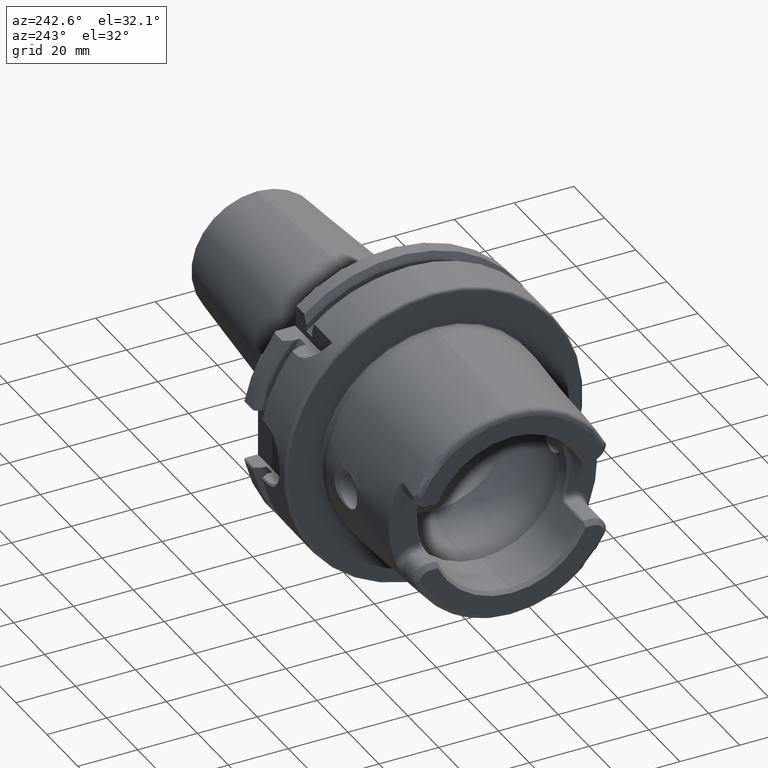
[diagram: clean part render]
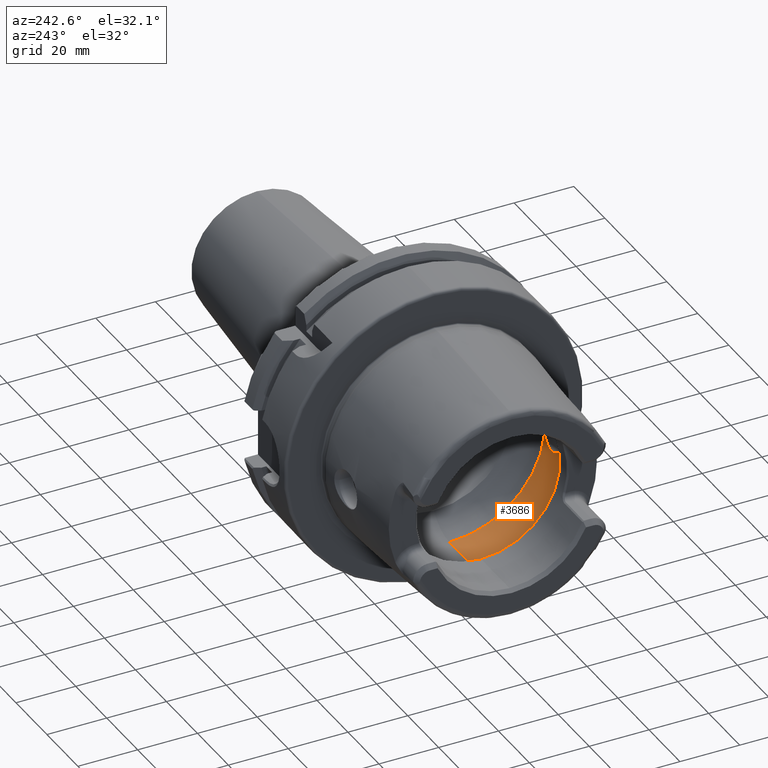
[diagram: same view with one face highlighted and labeled with its STEP entity id]
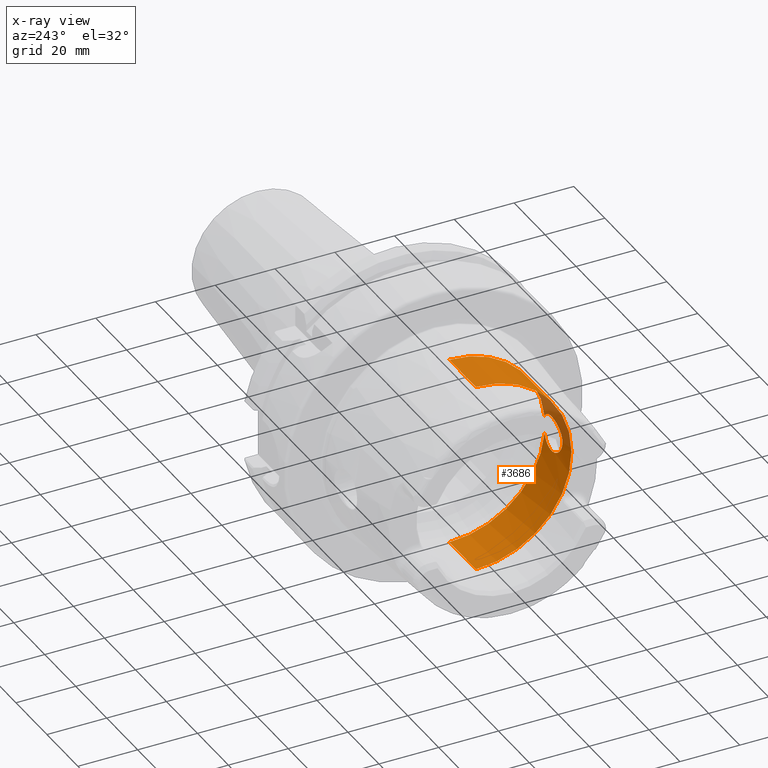
[diagram: x-ray of the same camera — body ghosted, the highlighted face saturated]
A machine part, auxiliary view. The second image highlights one B-rep face of the part: STEP entity #3686.
The next image is the same camera in x-ray: the body ghosted, the highlighted face saturated — about 7% of this face is hidden behind the body in this view.
In plain terms, the highlighted cylindrical surface (partial cylindrical patch) has radius 31.9778 mm, axis along (1, 0, 0).
Its self-contained STEP definition (entity closure, byte-faithful):
#485=CARTESIAN_POINT('',(-2.1E1,-3.1977801E1,0.E0));
#486=CARTESIAN_POINT('',(-2.1E1,-3.1977801E1,-4.101582191210E-1));
#487=CARTESIAN_POINT('',(-2.091773124914E1,-3.196221615525E1,
-1.212629527282E0));
#488=CARTESIAN_POINT('',(-2.055185605700E1,-3.189559952721E1,
-2.383229318045E0));
#489=CARTESIAN_POINT('',(-1.995642944012E1,-3.179608319799E1,
-3.453352431193E0));
#490=CARTESIAN_POINT('',(-1.916478424237E1,-3.168070870612E1,
-4.376379215682E0));
#491=CARTESIAN_POINT('',(-1.819223644760E1,-3.156605857287E1,
-5.128923203682E0));
#492=CARTESIAN_POINT('',(-1.709958222396E1,-3.147295008569E1,
-5.664973385295E0));
#493=CARTESIAN_POINT('',(-1.590286337370E1,-3.141500045215E1,
-5.973799251079E0));
#494=CARTESIAN_POINT('',(-1.468413550622E1,-3.140346134515E1,
-6.033257760163E0));
#495=CARTESIAN_POINT('',(-1.346407685513E1,-3.143989965097E1,
-5.843179728265E0));
#496=CARTESIAN_POINT('',(-1.232230375292E1,-3.151751839140E1,
-5.415146251802E0));
#497=CARTESIAN_POINT('',(-1.128383632194E1,-3.162406528815E1,
-4.763660379291E0));
#498=CARTESIAN_POINT('',(-1.040120900734E1,-3.174159300596E1,
-3.916297432444E0));
#499=CARTESIAN_POINT('',(-9.944005412070E0,-3.181359782082E1,
-3.256303564183E0));
#500=CARTESIAN_POINT('',(-9.7468E0,-3.184612797556E1,-2.898946318923E0));
#502=CARTESIAN_POINT('',(-9.7468E0,-3.184612797556E1,2.898946318923E0));
#503=CARTESIAN_POINT('',(-9.943868956182E0,-3.181362033E1,3.256056291556E0));
#504=CARTESIAN_POINT('',(-1.040077785180E1,-3.174165626215E1,3.915788684093E0));
#505=CARTESIAN_POINT('',(-1.128353552125E1,-3.162409994003E1,4.763448630545E0));
#506=CARTESIAN_POINT('',(-1.232220739456E1,-3.151751847994E1,5.415151951562E0));
#507=CARTESIAN_POINT('',(-1.346474793553E1,-3.143986592390E1,5.843361181337E0));
#508=CARTESIAN_POINT('',(-1.468440379305E1,-3.140345786656E1,6.033275618571E0));
#509=CARTESIAN_POINT('',(-1.590338113122E1,-3.141502534529E1,5.973665622476E0));
#510=CARTESIAN_POINT('',(-1.709844581408E1,-3.147288841800E1,5.665307686584E0));
#511=CARTESIAN_POINT('',(-1.819087647608E1,-3.156592403505E1,5.129712845397E0));
#512=CARTESIAN_POINT('',(-1.916278264299E1,-3.168044678313E1,4.378227659287E0));
#513=CARTESIAN_POINT('',(-1.995512820959E1,-3.179587350407E1,3.455309060389E0));
#514=CARTESIAN_POINT('',(-2.055116984056E1,-3.189547806763E1,2.384883505607E0));
#515=CARTESIAN_POINT('',(-2.091749471661E1,-3.196217129480E1,1.214029966031E0));
#516=CARTESIAN_POINT('',(-2.1E1,-3.1977801E1,4.106997477683E-1));
#517=CARTESIAN_POINT('',(-2.1E1,-3.1977801E1,0.E0));
#519=CARTESIAN_POINT('',(-9.7468E0,0.E0,0.E0));
#520=DIRECTION('',(1.E0,0.E0,0.E0));
#521=DIRECTION('',(0.E0,0.E0,1.E0));
#522=AXIS2_PLACEMENT_3D('',#519,#520,#521);
#524=DIRECTION('',(-1.E0,0.E0,0.E0));
#525=VECTOR('',#524,1.709396579106E1);
#526=CARTESIAN_POINT('',(-9.7468E0,0.E0,3.1977801E1));
#527=LINE('',#526,#525);
#528=DIRECTION('',(-1.E0,0.E0,0.E0));
#529=VECTOR('',#528,1.709396579106E1);
#530=CARTESIAN_POINT('',(-9.7468E0,0.E0,-3.1977801E1));
#531=LINE('',#530,#529);
#532=CARTESIAN_POINT('',(-9.7468E0,0.E0,0.E0));
#533=DIRECTION('',(1.E0,0.E0,0.E0));
#534=DIRECTION('',(0.E0,-9.958823615031E-1,-9.065496151294E-2));
#535=AXIS2_PLACEMENT_3D('',#532,#533,#534);
#541=CARTESIAN_POINT('',(-2.684076579106E1,0.E0,0.E0));
#542=DIRECTION('',(-1.E0,0.E0,0.E0));
#543=DIRECTION('',(0.E0,0.E0,-1.E0));
#544=AXIS2_PLACEMENT_3D('',#541,#542,#543);
#2776=CARTESIAN_POINT('',(-2.684076579106E1,0.E0,-3.1977801E1));
#2777=CARTESIAN_POINT('',(-2.684076579106E1,0.E0,3.1977801E1));
#2778=VERTEX_POINT('',#2776);
#2779=VERTEX_POINT('',#2777);
#2788=CARTESIAN_POINT('',(-9.7468E0,0.E0,-3.1977801E1));
#2789=VERTEX_POINT('',#2788);
#2790=CARTESIAN_POINT('',(-9.7468E0,0.E0,3.1977801E1));
#2791=VERTEX_POINT('',#2790);
#3072=VERTEX_POINT('',#485);
#3073=VERTEX_POINT('',#500);
#3074=VERTEX_POINT('',#502);
#3671=CARTESIAN_POINT('',(0.E0,0.E0,0.E0));
#3672=DIRECTION('',(1.E0,0.E0,0.E0));
#3673=DIRECTION('',(0.E0,0.E0,1.E0));
#3674=AXIS2_PLACEMENT_3D('',#3671,#3672,#3673);
#3675=CYLINDRICAL_SURFACE('',#3674,3.1977801E1);
#3676=ORIENTED_EDGE('',*,*,#3571,.F.);
#3677=ORIENTED_EDGE('',*,*,#3630,.F.);
#3678=ORIENTED_EDGE('',*,*,#3537,.F.);
#3679=ORIENTED_EDGE('',*,*,#3648,.T.);
#3681=ORIENTED_EDGE('',*,*,#3680,.F.);
#3682=ORIENTED_EDGE('',*,*,#3644,.F.);
#3683=ORIENTED_EDGE('',*,*,#3530,.F.);
#3684=EDGE_LOOP('',(#3676,#3677,#3678,#3679,#3681,#3682,#3683));
#3685=FACE_OUTER_BOUND('',#3684,.F.);
#3686=ADVANCED_FACE('',(#3685),#3675,.F.);
#501=B_SPLINE_CURVE_WITH_KNOTS('',3,(#485,#486,#487,#488,#489,#490,#491,#492,
#493,#494,#495,#496,#497,#498,#499,#500),.UNSPECIFIED.,.F.,.F.,(4,1,1,1,1,1,1,1,
1,1,1,1,1,4),(0.E0,7.692307692308E-2,1.538461538462E-1,2.307692307692E-1,
3.076923076923E-1,3.846153846154E-1,4.615384615385E-1,5.384615384615E-1,
6.153846153846E-1,6.923076923077E-1,7.692307692308E-1,8.461538461538E-1,
9.230769230769E-1,1.E0),.UNSPECIFIED.);
#518=B_SPLINE_CURVE_WITH_KNOTS('',3,(#502,#503,#504,#505,#506,#507,#508,#509,
#510,#511,#512,#513,#514,#515,#516,#517),.UNSPECIFIED.,.F.,.F.,(4,1,1,1,1,1,1,1,
1,1,1,1,1,4),(0.E0,7.692307692308E-2,1.538461538462E-1,2.307692307692E-1,
3.076923076923E-1,3.846153846154E-1,4.615384615385E-1,5.384615384615E-1,
6.153846153846E-1,6.923076923077E-1,7.692307692308E-1,8.461538461538E-1,
9.230769230769E-1,1.E0),.UNSPECIFIED.);
#523=CIRCLE('',#522,3.1977801E1);
#536=CIRCLE('',#535,3.1977801E1);
#545=CIRCLE('',#544,3.1977801E1);
#3530=EDGE_CURVE('',#3073,#2789,#536,.T.);
#3537=EDGE_CURVE('',#2791,#3074,#523,.T.);
#3571=EDGE_CURVE('',#3072,#3073,#501,.T.);
#3630=EDGE_CURVE('',#3074,#3072,#518,.T.);
#3644=EDGE_CURVE('',#2789,#2778,#531,.T.);
#3648=EDGE_CURVE('',#2791,#2779,#527,.T.);
#3680=EDGE_CURVE('',#2778,#2779,#545,.T.);